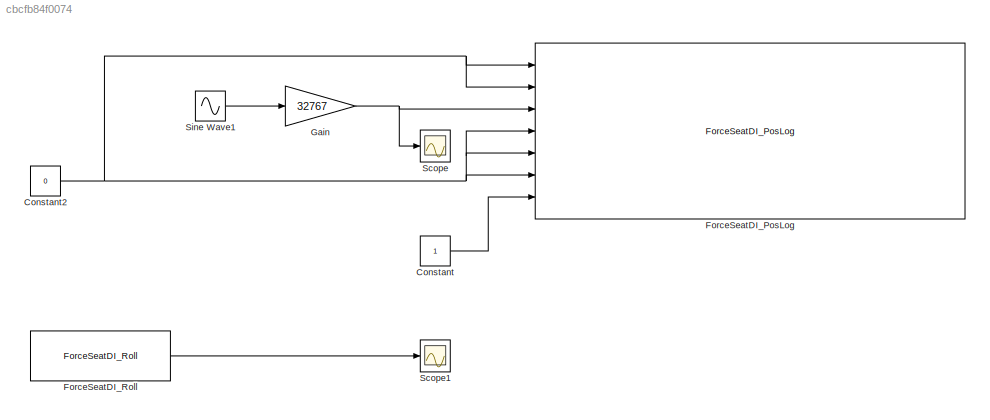
MODEL slx_cbcfb84f0074
KIND model
CONFIG AbsTol = auto
CONFIG EnableMultiTasking = off
CONFIG FixedStep = auto
CONFIG MaxStep = auto
CONFIG MinStep = auto
CONFIG RelTol = 1e-3
CONFIG SampleTimeConstraint = Unconstrained
CONFIG Solver = VariableStepAuto
CONFIG SolverName = VariableStepAuto
CONFIG StartTime = 0.0
CONFIG StopTime = 100
BLOCK [Constant] Constant
  OutDataTypeStr = int32
BLOCK [Constant] Constant2
  Value = 0
BLOCK [Reference] ForceSeatDI_PosLog  REF=ForceSeatDI_Simulink/ForceSeatDI_PosLog
  Ports = [7]
  SourceBlock = ForceSeatDI_Simulink/ForceSeatDI_PosLog
  SourceProductName = MotionsSystems ForceSeatDI
  SourceType = CCaller
BLOCK [Reference] ForceSeatDI_Roll  REF=ForceSeatDI_Simulink/ForceSeatDI_Roll
  Ports = [0, 1]
  SourceBlock = ForceSeatDI_Simulink/ForceSeatDI_Roll
  SourceProductName = MotionsSystems ForceSeatDI
  SourceType = CCaller
BLOCK [Gain] Gain
  Gain = 32767
  OutDataTypeStr = Inherit: Inherit via internal rule
  ParamDataTypeStr = Inherit: Inherit via internal rule
  SaturateOnIntegerOverflow = off
BLOCK [Scope] Scope
  Floating = off
  NumInputPorts = 1
  Ports = [1]
  ScopeSpecificationString = Simulink.scopes.TimeScopeBlockCfg('CurrentConfiguration', extmgr.ConfigurationSet(extmgr.Configuration('Core','General UI',true),extmgr.Configuration('Core','Source UI',true),extmgr.Configuration('Sources','WiredSimulink',true),extmgr.Configuration('Visuals','Time Domain',true,'SerializedDisplays',{struct('MinYLimReal','-40958.64351','MaxYLimReal','40958.72662','YLabelReal','','MinYLimMag','   0.0...<+1350ch>
BLOCK [Scope] Scope1
  Floating = off
  NumInputPorts = 1
  Ports = [1]
  ScopeSpecificationString = Simulink.scopes.TimeScopeBlockCfg('CurrentConfiguration', extmgr.ConfigurationSet(extmgr.Configuration('Core','General UI',true),extmgr.Configuration('Core','Source UI',true),extmgr.Configuration('Sources','WiredSimulink',true,'DataLoggingVariableName','ScopeData1'),extmgr.Configuration('Visuals','Time Domain',true),extmgr.Configuration('Tools','Plot Navigation',true),extmgr.Configuration('Tools',...<+40ch>
BLOCK [Sin] Sine Wave1
  Ports = [0, 1]
  SampleTime = 0.01
NET Constant2:1 -> ForceSeatDI_PosLog:1, ForceSeatDI_PosLog:2, ForceSeatDI_PosLog:4, ForceSeatDI_PosLog:5, ForceSeatDI_PosLog:6
LINE Constant:1 -> ForceSeatDI_PosLog:7
LINE ForceSeatDI_Roll:1 -> Scope1:1
NET Gain:1 -> ForceSeatDI_PosLog:3, Scope:1
LINE Sine Wave1:1 -> Gain:1
note: NET lines group one-source signal fan-out (src -> all destinations, sorted); 1:1 wires keep LINE
